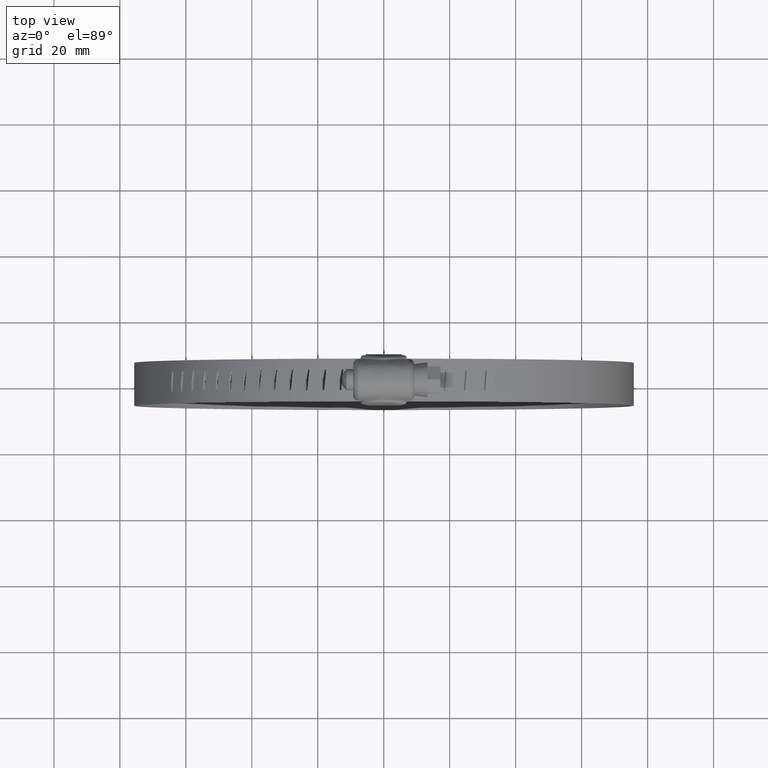
[diagram: clean part render]
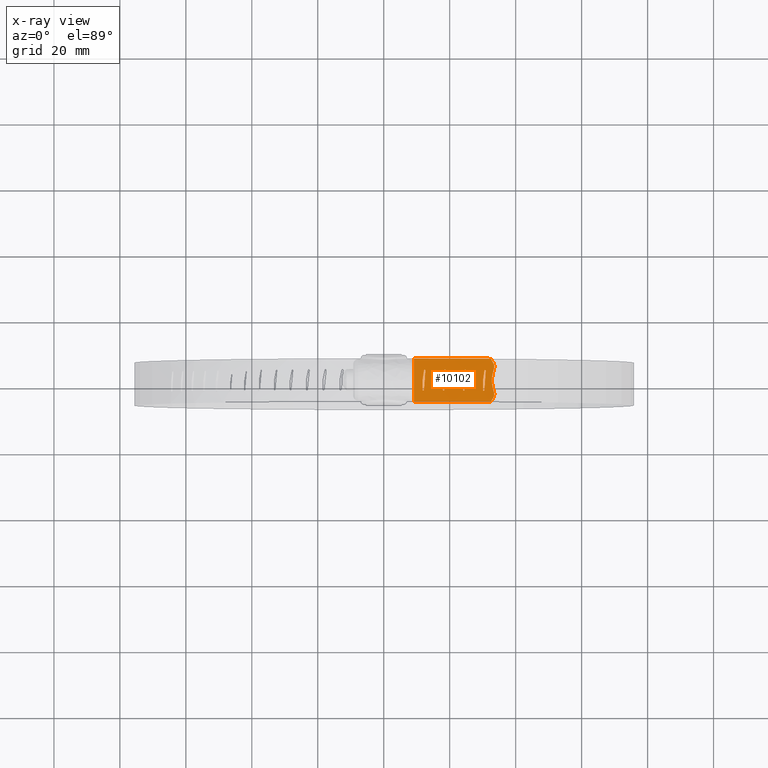
[diagram: x-ray — body ghosted, one internal face saturated and labeled with its STEP entity id]
A machine part, top view, then the same camera in x-ray: the body is ghosted and one INTERNAL B-rep face — a face not visible from any outside direction — is saturated and labeled: STEP entity #10102.
In plain terms, the highlighted face is a freeform B-spline surface patch.
Its self-contained STEP definition (entity closure, byte-faithful):
#8522=CARTESIAN_POINT('',(12.621050563106520,2.922974000000000,9.639978674388040));
#8523=VERTEX_POINT('',#8522);
#8553=CARTESIAN_POINT('',(12.197258352293501,2.922974000000000,9.715764423568471));
#8554=VERTEX_POINT('',#8553);
#8560=CARTESIAN_POINT('',(12.409141261787120,3.138223995001173,9.678004938314420));
#8561=VERTEX_POINT('',#8560);
#8562=CARTESIAN_POINT('',(12.409141261787120,3.138223995001173,9.678004938314420));
#8563=CARTESIAN_POINT('',(12.360539040545341,3.138493260547965,9.686696521324826));
#8564=CARTESIAN_POINT('',(12.277678379270631,3.107883992579400,9.701495662613029));
#8565=CARTESIAN_POINT('',(12.209647047831229,3.014547639316840,9.713604726398202));
#8566=CARTESIAN_POINT('',(12.197243026242370,2.951143868989650,9.715784312143546));
#8567=CARTESIAN_POINT('',(12.197258352293501,2.922974000000000,9.715764423568471));
#8568=B_SPLINE_CURVE_WITH_KNOTS('',3,(#8562,#8563,#8564,#8565,#8566,#8567),.UNSPECIFIED.,.F.,.U.,(4,1,1,4),(0.000001345725201,0.147992973240399,0.253677290558605,0.338236200371252),.UNSPECIFIED.);
#8569=EDGE_CURVE('',#8561,#8554,#8568,.T.);
#8571=CARTESIAN_POINT('',(12.621050563106520,2.922974000000000,9.639978674388040));
#8572=CARTESIAN_POINT('',(12.621321727612600,2.972379973455670,9.639960257601485));
#8573=CARTESIAN_POINT('',(12.593653056962941,3.049442554881268,9.644955090285704));
#8574=CARTESIAN_POINT('',(12.506172244041890,3.122316128271301,9.660643435679807));
#8575=CARTESIAN_POINT('',(12.443816358497291,3.138295098606456,9.671804116790016));
#8576=CARTESIAN_POINT('',(12.409141261787120,3.138223995001173,9.678004938314420));
#8577=B_SPLINE_CURVE_WITH_KNOTS('',3,(#8571,#8572,#8573,#8574,#8575,#8576),.UNSPECIFIED.,.F.,.U.,(4,1,1,4),(0.000000645072227,0.148010650070819,0.232556737187466,0.338277326846888),.UNSPECIFIED.);
#8578=EDGE_CURVE('',#8523,#8561,#8577,.T.);
#8588=CARTESIAN_POINT('',(12.197733933045599,-2.946526000000120,9.715679963979151));
#8589=VERTEX_POINT('',#8588);
#8603=CARTESIAN_POINT('',(12.197733933045599,-2.946526000000120,9.715679963979151));
#8604=CARTESIAN_POINT('',(12.621050563106520,2.922974000000000,9.639978674388040));
#8605=QUASI_UNIFORM_CURVE('',1,(#8603,#8604),.UNSPECIFIED.,.F.,.U.);
#8606=EDGE_CURVE('',#8589,#8523,#8605,.T.);
#8629=CARTESIAN_POINT('',(11.776015468093100,-2.915155000000085,9.790056147259360));
#8630=VERTEX_POINT('',#8629);
#8659=CARTESIAN_POINT('',(11.970270423373920,-3.161200159280604,9.755925241045254));
#8660=VERTEX_POINT('',#8659);
#8661=CARTESIAN_POINT('',(11.970270423373920,-3.161200159280604,9.755925241045254));
#8662=CARTESIAN_POINT('',(12.021047265318810,-3.165303050522245,9.746972208280443));
#8663=CARTESIAN_POINT('',(12.102405409654880,-3.140370726307386,9.732608301260834));
#8664=CARTESIAN_POINT('',(12.180526615000300,-3.049656764146616,9.718776157640372));
#8665=CARTESIAN_POINT('',(12.197827261485100,-2.983403777770540,9.715685442082318));
#8666=CARTESIAN_POINT('',(12.197733933045599,-2.946526000000120,9.715679963979151));
#8667=B_SPLINE_CURVE_WITH_KNOTS('',3,(#8661,#8662,#8663,#8664,#8665,#8666),.UNSPECIFIED.,.F.,.U.,(4,1,1,4),(0.000001156271713,0.154902252464168,0.243381106386276,0.354023892040114),.UNSPECIFIED.);
#8668=EDGE_CURVE('',#8660,#8589,#8667,.T.);
#8670=CARTESIAN_POINT('',(11.776015468093100,-2.915155000000085,9.790056147259360));
#8671=CARTESIAN_POINT('',(11.768293247647460,-2.966240788033765,9.791448817903566));
#8672=CARTESIAN_POINT('',(11.788501070781860,-3.058242182432255,9.787937399033986));
#8673=CARTESIAN_POINT('',(11.877128390070579,-3.140411750915053,9.772347709588651));
#8674=CARTESIAN_POINT('',(11.941319007800599,-3.159075034610215,9.761032405782125));
#8675=CARTESIAN_POINT('',(11.970270423373920,-3.161200159280604,9.755925241045254));
#8676=B_SPLINE_CURVE_WITH_KNOTS('',3,(#8670,#8671,#8672,#8673,#8674,#8675),.UNSPECIFIED.,.F.,.U.,(4,1,1,4),(0.000001168460284,0.154895498409542,0.265506636956977,0.354008461339972),.UNSPECIFIED.);
#8677=EDGE_CURVE('',#8630,#8660,#8676,.T.);
#8687=CARTESIAN_POINT('',(11.776015468093121,-0.011775999999998,9.790056147259470));
#8688=VERTEX_POINT('',#8687);
#8702=CARTESIAN_POINT('',(11.776015468093121,-0.011775999999998,9.790056147259470));
#8703=CARTESIAN_POINT('',(11.776015468093100,-2.915155000000085,9.790056147259360));
#8704=QUASI_UNIFORM_CURVE('',1,(#8702,#8703),.UNSPECIFIED.,.F.,.U.);
#8705=EDGE_CURVE('',#8688,#8630,#8704,.T.);
#8722=CARTESIAN_POINT('',(12.197258352293501,2.922974000000000,9.715764423568471));
#8723=CARTESIAN_POINT('',(11.776015468093121,-0.011775999999998,9.790056147259470));
#8724=QUASI_UNIFORM_CURVE('',1,(#8722,#8723),.UNSPECIFIED.,.F.,.U.);
#8725=EDGE_CURVE('',#8554,#8688,#8724,.T.);
#8748=CARTESIAN_POINT('',(18.771069719682750,2.922974000000000,8.421398834297820));
#8749=VERTEX_POINT('',#8748);
#8779=CARTESIAN_POINT('',(18.350180556137651,2.922974000000000,8.511928551711371));
#8780=VERTEX_POINT('',#8779);
#8786=CARTESIAN_POINT('',(18.560616605256289,3.138223995001173,8.466797461614279));
#8787=VERTEX_POINT('',#8786);
#8788=CARTESIAN_POINT('',(18.560616605256289,3.138223995001173,8.466797461614279));
#8789=CARTESIAN_POINT('',(18.512348999036199,3.138494714410219,8.477179583407080));
#8790=CARTESIAN_POINT('',(18.430048509154489,3.107878084570650,8.494862960290650));
#8791=CARTESIAN_POINT('',(18.362492850349700,3.014556553166598,8.509336414454214));
#8792=CARTESIAN_POINT('',(18.350159785994840,2.951132792276238,8.511950278534847));
#8793=CARTESIAN_POINT('',(18.350180556137651,2.922974000000000,8.511928551711371));
#8794=B_SPLINE_CURVE_WITH_KNOTS('',3,(#8788,#8789,#8790,#8791,#8792,#8793),.UNSPECIFIED.,.F.,.U.,(4,1,1,4),(0.000001345725174,0.147992973240308,0.253677290558458,0.338236200371078),.UNSPECIFIED.);
#8795=EDGE_CURVE('',#8787,#8780,#8794,.T.);
#8797=CARTESIAN_POINT('',(18.771069719682750,2.922974000000000,8.421398834297820));
#8798=CARTESIAN_POINT('',(18.771124869586082,2.958187236685915,8.421408555231759));
#8799=CARTESIAN_POINT('',(18.752113915345930,3.035712085874971,8.425545168776626));
#8800=CARTESIAN_POINT('',(18.670851267473260,3.118858174133634,8.443075043312792));
#8801=CARTESIAN_POINT('',(18.595038663515851,3.138278461204645,8.459393599862638));
#8802=CARTESIAN_POINT('',(18.560616605256289,3.138223995001173,8.466797461614279));
#8803=B_SPLINE_CURVE_WITH_KNOTS('',3,(#8797,#8798,#8799,#8800,#8801,#8802),.UNSPECIFIED.,.F.,.U.,(4,1,1,4),(0.000000645072310,0.105721354997011,0.232556737187596,0.338277326847056),.UNSPECIFIED.);
#8804=EDGE_CURVE('',#8749,#8787,#8803,.T.);
#8814=CARTESIAN_POINT('',(18.350652899581799,-2.946526000000120,8.511827546044069));
#8815=VERTEX_POINT('',#8814);
#8829=CARTESIAN_POINT('',(18.350652899581799,-2.946526000000120,8.511827546044069));
#8830=CARTESIAN_POINT('',(18.771069719682750,2.922974000000000,8.421398834297820));
#8831=QUASI_UNIFORM_CURVE('',1,(#8829,#8830),.UNSPECIFIED.,.F.,.U.);
#8832=EDGE_CURVE('',#8815,#8749,#8831,.T.);
#8855=CARTESIAN_POINT('',(17.931787025486699,-2.915155000000085,8.600876183539610));
#8856=VERTEX_POINT('',#8855);
#8885=CARTESIAN_POINT('',(18.124732494448331,-3.161200159280607,8.559986668780027));
#8886=VERTEX_POINT('',#8885);
#8887=CARTESIAN_POINT('',(18.124732494448331,-3.161200159280607,8.559986668780027));
#8888=CARTESIAN_POINT('',(18.175136728811790,-3.165300093761974,8.549273213981504));
#8889=CARTESIAN_POINT('',(18.263401513332600,-3.138123526509467,8.530491895674992));
#8890=CARTESIAN_POINT('',(18.337158377896131,-3.042373157827289,8.514753880605325));
#8891=CARTESIAN_POINT('',(18.350679572907431,-2.976005552294571,8.511839531956777));
#8892=CARTESIAN_POINT('',(18.350652899581799,-2.946526000000120,8.511827546044069));
#8893=B_SPLINE_CURVE_WITH_KNOTS('',3,(#8887,#8888,#8889,#8890,#8891,#8892),.UNSPECIFIED.,.F.,.U.,(4,1,1,4),(0.000001156271714,0.154902252464229,0.265518211435355,0.354023892040297),.UNSPECIFIED.);
#8894=EDGE_CURVE('',#8886,#8815,#8893,.T.);
#8896=CARTESIAN_POINT('',(17.931787025486699,-2.915155000000085,8.600876183539610));
#8897=CARTESIAN_POINT('',(17.926445147713100,-2.951622092567856,8.602033923224212));
#8898=CARTESIAN_POINT('',(17.934021206228699,-3.019731395043842,8.600463058576914));
#8899=CARTESIAN_POINT('',(17.997860643733500,-3.121029310247312,8.586945835123895));
#8900=CARTESIAN_POINT('',(18.074257933800830,-3.157744793972979,8.570719505521609));
#8901=CARTESIAN_POINT('',(18.124732494448331,-3.161200159280607,8.559986668780027));
#8902=B_SPLINE_CURVE_WITH_KNOTS('',3,(#8896,#8897,#8898,#8899,#8900,#8901),.UNSPECIFIED.,.F.,.U.,(4,1,1,4),(0.000001168460005,0.110639128882828,0.199114127584137,0.354008461339880),.UNSPECIFIED.);
#8903=EDGE_CURVE('',#8856,#8886,#8902,.T.);
#8913=CARTESIAN_POINT('',(17.931787025486649,-0.011775999999998,8.600876183539551));
#8914=VERTEX_POINT('',#8913);
#8928=CARTESIAN_POINT('',(17.931787025486649,-0.011775999999998,8.600876183539551));
#8929=CARTESIAN_POINT('',(17.931787025486699,-2.915155000000085,8.600876183539610));
#8930=QUASI_UNIFORM_CURVE('',1,(#8928,#8929),.UNSPECIFIED.,.F.,.U.);
#8931=EDGE_CURVE('',#8914,#8856,#8930,.T.);
#8948=CARTESIAN_POINT('',(18.350180556137651,2.922974000000000,8.511928551711371));
#8949=CARTESIAN_POINT('',(17.931787025486649,-0.011775999999998,8.600876183539551));
#8950=QUASI_UNIFORM_CURVE('',1,(#8948,#8949),.UNSPECIFIED.,.F.,.U.);
#8951=EDGE_CURVE('',#8780,#8914,#8950,.T.);
#8974=CARTESIAN_POINT('',(24.874814627645701,2.922974000000000,6.988928746845870));
#8975=VERTEX_POINT('',#8974);
#9005=CARTESIAN_POINT('',(24.457341299981401,2.922974000000000,7.094092135976839));
#9006=VERTEX_POINT('',#9005);
#9012=CARTESIAN_POINT('',(24.666074104814609,3.138223995001173,7.041644426318238));
#9013=VERTEX_POINT('',#9012);
#9014=CARTESIAN_POINT('',(24.666074104814609,3.138223995001173,7.041644426318238));
#9015=CARTESIAN_POINT('',(24.638760342801412,3.138245831608185,7.048524897973174));
#9016=CARTESIAN_POINT('',(24.577270392426200,3.125639330267080,7.064006699908362));
#9017=CARTESIAN_POINT('',(24.486768513444659,3.056523974837111,7.086761816411484));
#9018=CARTESIAN_POINT('',(24.457088100575810,2.972346743392946,7.094186427628648));
#9019=CARTESIAN_POINT('',(24.457341299981401,2.922974000000000,7.094092135976839));
#9020=B_SPLINE_CURVE_WITH_KNOTS('',3,(#9014,#9015,#9016,#9017,#9018,#9019),.UNSPECIFIED.,.F.,.U.,(4,1,1,4),(0.000001345725144,0.084560085239136,0.190244305550531,0.338236200371005),.UNSPECIFIED.);
#9021=EDGE_CURVE('',#9013,#9006,#9020,.T.);
#9023=CARTESIAN_POINT('',(24.874814627645701,2.922974000000000,6.988928746845870));
#9024=CARTESIAN_POINT('',(24.874833014384759,2.951145385740156,6.988941523485854));
#9025=CARTESIAN_POINT('',(24.862613992439570,3.014562230158369,6.992058737577098));
#9026=CARTESIAN_POINT('',(24.795554105325639,3.107853098002131,7.009009070230953));
#9027=CARTESIAN_POINT('',(24.713982247101789,3.138526327300617,7.029576338814580));
#9028=CARTESIAN_POINT('',(24.666074104814609,3.138223995001173,7.041644426318238));
#9029=B_SPLINE_CURVE_WITH_KNOTS('',3,(#9023,#9024,#9025,#9026,#9027,#9028),.UNSPECIFIED.,.F.,.U.,(4,1,1,4),(0.000000645072365,0.084569798400245,0.190267498508716,0.338277326847055),.UNSPECIFIED.);
#9030=EDGE_CURVE('',#8975,#9013,#9029,.T.);
#9040=CARTESIAN_POINT('',(24.457809830639651,-2.946526000000120,7.093974707290900));
#9041=VERTEX_POINT('',#9040);
#9055=CARTESIAN_POINT('',(24.457809830639651,-2.946526000000120,7.093974707290900));
#9056=CARTESIAN_POINT('',(24.874814627645701,2.922974000000000,6.988928746845870));
#9057=QUASI_UNIFORM_CURVE('',1,(#9055,#9056),.UNSPECIFIED.,.F.,.U.);
#9058=EDGE_CURVE('',#9041,#8975,#9057,.T.);
#9081=CARTESIAN_POINT('',(24.042306870948352,-2.915155000000085,7.197587306954190));
#9082=VERTEX_POINT('',#9081);
#9111=CARTESIAN_POINT('',(24.233707779257770,-3.161200159280608,7.149989001224705));
#9112=VERTEX_POINT('',#9111);
#9113=CARTESIAN_POINT('',(24.233707779257770,-3.161200159280608,7.149989001224705));
#9114=CARTESIAN_POINT('',(24.262221397465900,-3.163389511918628,7.142879838072451));
#9115=CARTESIAN_POINT('',(24.327441673824641,-3.154416371896264,7.126610338972950));
#9116=CARTESIAN_POINT('',(24.425436604130820,-3.086251915326308,7.102132034415258));
#9117=CARTESIAN_POINT('',(24.458126633327119,-2.998211253595978,7.093926912922213));
#9118=CARTESIAN_POINT('',(24.457809830639651,-2.946526000000120,7.093974707290900));
#9119=B_SPLINE_CURVE_WITH_KNOTS('',3,(#9113,#9114,#9115,#9116,#9117,#9118),.UNSPECIFIED.,.F.,.U.,(4,1,1,4),(0.000001156271799,0.088506843551154,0.199122806770314,0.354023892040531),.UNSPECIFIED.);
#9120=EDGE_CURVE('',#9112,#9041,#9119,.T.);
#9122=CARTESIAN_POINT('',(24.042306870948352,-2.915155000000085,7.197587306954190));
#9123=CARTESIAN_POINT('',(24.038120835447479,-2.944315513354746,7.198648963510533));
#9124=CARTESIAN_POINT('',(24.042021288234938,-3.011986044209094,7.197716455258458));
#9125=CARTESIAN_POINT('',(24.100887076864879,-3.117702655031009,7.183095455153842));
#9126=CARTESIAN_POINT('',(24.183665622042419,-3.157743422140402,7.162470079308171));
#9127=CARTESIAN_POINT('',(24.233707779257770,-3.161200159280608,7.149989001224705));
#9128=B_SPLINE_CURVE_WITH_KNOTS('',3,(#9122,#9123,#9124,#9125,#9126,#9127),.UNSPECIFIED.,.F.,.U.,(4,1,1,4),(0.000001168460267,0.088502990517027,0.199114127584070,0.354008461339688),.UNSPECIFIED.);
#9129=EDGE_CURVE('',#9082,#9112,#9128,.T.);
#9139=CARTESIAN_POINT('',(24.042306870948401,-0.011775999999998,7.197587306954410));
#9140=VERTEX_POINT('',#9139);
#9154=CARTESIAN_POINT('',(24.042306870948401,-0.011775999999998,7.197587306954410));
#9155=CARTESIAN_POINT('',(24.042306870948352,-2.915155000000085,7.197587306954190));
#9156=QUASI_UNIFORM_CURVE('',1,(#9154,#9155),.UNSPECIFIED.,.F.,.U.);
#9157=EDGE_CURVE('',#9140,#9082,#9156,.T.);
#9174=CARTESIAN_POINT('',(24.457341299981401,2.922974000000000,7.094092135976839));
#9175=CARTESIAN_POINT('',(24.042306870948401,-0.011775999999998,7.197587306954410));
#9176=QUASI_UNIFORM_CURVE('',1,(#9174,#9175),.UNSPECIFIED.,.F.,.U.);
#9177=EDGE_CURVE('',#9006,#9140,#9176,.T.);
#9208=CARTESIAN_POINT('',(33.444859360760702,3.681800700683225,4.591771502739620));
#9209=VERTEX_POINT('',#9208);
#9215=CARTESIAN_POINT('',(33.236891107048912,5.226117512658901,4.655400619356680));
#9216=VERTEX_POINT('',#9215);
#9217=CARTESIAN_POINT('',(33.236891107048912,5.226117512658901,4.655400619356680));
#9218=CARTESIAN_POINT('',(33.376816057057887,4.983017097622835,4.612553435106204));
#9219=CARTESIAN_POINT('',(33.544202799334407,4.465687030956193,4.561307361192305));
#9220=CARTESIAN_POINT('',(33.506726285105572,3.923649057816981,4.572810953511202));
#9221=CARTESIAN_POINT('',(33.444859360760702,3.681800700683225,4.591771502739620));
#9222=B_SPLINE_CURVE_WITH_KNOTS('',3,(#9217,#9218,#9219,#9220,#9221),.UNSPECIFIED.,.F.,.U.,(4,1,4),(0.000000096869533,0.851088487590407,1.602096485835686),.UNSPECIFIED.);
#9223=EDGE_CURVE('',#9216,#9209,#9222,.T.);
#9259=CARTESIAN_POINT('',(33.236891107049154,-5.226117512658950,4.655400619356630));
#9260=VERTEX_POINT('',#9259);
#9266=CARTESIAN_POINT('',(33.444859360760802,-3.681800700682530,4.591771502739620));
#9267=VERTEX_POINT('',#9266);
#9268=CARTESIAN_POINT('',(33.444859360760802,-3.681800700682530,4.591771502739620));
#9269=CARTESIAN_POINT('',(33.486010089358572,-3.843035977143960,4.579173764375308));
#9270=CARTESIAN_POINT('',(33.533797300948301,-4.209686380182802,4.564541501097377));
#9271=CARTESIAN_POINT('',(33.461804379335483,-4.744456174858482,4.586568158348844));
#9272=CARTESIAN_POINT('',(33.319016629508418,-5.083037564256418,4.630266401343206));
#9273=CARTESIAN_POINT('',(33.236891107049154,-5.226117512658950,4.655400619356630));
#9274=B_SPLINE_CURVE_WITH_KNOTS('',3,(#9268,#9269,#9270,#9271,#9272,#9273),.UNSPECIFIED.,.F.,.U.,(4,1,1,4),(0.000000096869835,0.500658340819480,1.101438264633571,1.602096508583192),.UNSPECIFIED.);
#9275=EDGE_CURVE('',#9267,#9260,#9274,.T.);
#9311=CARTESIAN_POINT('',(33.031557681417937,-2.061301204482635,4.717953573587089));
#9312=VERTEX_POINT('',#9311);
#9318=CARTESIAN_POINT('',(33.031557681417851,2.061301204482760,4.717953573587089));
#9319=VERTEX_POINT('',#9318);
#9320=CARTESIAN_POINT('',(33.031557681417851,2.061301204482760,4.717953573587089));
#9321=CARTESIAN_POINT('',(32.849240367121091,1.347903772316319,4.773235284209349));
#9322=CARTESIAN_POINT('',(32.686107822480160,-0.044910367014609,4.822699846369584));
#9323=CARTESIAN_POINT('',(32.870756822103942,-1.431818847490588,4.766711129097889));
#9324=CARTESIAN_POINT('',(33.031557681417937,-2.061301204482635,4.717953573587089));
#9325=B_SPLINE_CURVE_WITH_KNOTS('',3,(#9320,#9321,#9322,#9323,#9324),.UNSPECIFIED.,.F.,.U.,(4,1,4),(0.000000018257038,2.215136431625336,4.169685229366509),.UNSPECIFIED.);
#9326=EDGE_CURVE('',#9319,#9312,#9325,.T.);
#9341=CARTESIAN_POINT('',(32.505389203886637,-6.500000000000000,4.877023384676110));
#9342=VERTEX_POINT('',#9341);
#9343=CARTESIAN_POINT('',(32.505389203886637,-6.500000000000000,4.877023384676110));
#9344=CARTESIAN_POINT('',(33.236891107049154,-5.226117512658950,4.655400619356630));
#9345=QUASI_UNIFORM_CURVE('',1,(#9343,#9344),.UNSPECIFIED.,.F.,.U.);
#9346=EDGE_CURVE('',#9342,#9260,#9345,.T.);
#9377=CARTESIAN_POINT('',(32.505389203886700,6.500000000000000,4.877023384676220));
#9378=VERTEX_POINT('',#9377);
#9379=CARTESIAN_POINT('',(33.236891107048912,5.226117512658901,4.655400619356680));
#9380=CARTESIAN_POINT('',(32.505389203886700,6.500000000000000,4.877023384676220));
#9381=QUASI_UNIFORM_CURVE('',1,(#9379,#9380),.UNSPECIFIED.,.F.,.U.);
#9382=EDGE_CURVE('',#9216,#9378,#9381,.T.);
#9403=CARTESIAN_POINT('',(33.444859360760802,-3.681800700682530,4.591771502739620));
#9404=CARTESIAN_POINT('',(33.031557681417937,-2.061301204482635,4.717953573587089));
#9405=QUASI_UNIFORM_CURVE('',1,(#9403,#9404),.UNSPECIFIED.,.F.,.U.);
#9406=EDGE_CURVE('',#9267,#9312,#9405,.T.);
#9417=CARTESIAN_POINT('',(33.031557681417851,2.061301204482760,4.717953573587089));
#9418=CARTESIAN_POINT('',(33.444859360760702,3.681800700683225,4.591771502739620));
#9419=QUASI_UNIFORM_CURVE('',1,(#9417,#9418),.UNSPECIFIED.,.F.,.U.);
#9420=EDGE_CURVE('',#9319,#9209,#9419,.T.);
#9450=CARTESIAN_POINT('',(30.924848814034998,2.922974000000000,5.344313656178990));
#9451=VERTEX_POINT('',#9450);
#9481=CARTESIAN_POINT('',(30.511299949194299,2.922974000000000,5.463982591636831));
#9482=VERTEX_POINT('',#9481);
#9488=CARTESIAN_POINT('',(30.718075200972379,3.138223995001173,5.404282161871834));
#9489=VERTEX_POINT('',#9488);
#9490=CARTESIAN_POINT('',(30.718075200972379,3.138223995001173,5.404282161871834));
#9491=CARTESIAN_POINT('',(30.691020666607749,3.138247470511352,5.412110966734415));
#9492=CARTESIAN_POINT('',(30.630111630180629,3.125630400532328,5.429728388120734));
#9493=CARTESIAN_POINT('',(30.540444971531350,3.056534856377400,5.455632191757301));
#9494=CARTESIAN_POINT('',(30.511053713639321,2.972342500479364,5.464084641473721));
#9495=CARTESIAN_POINT('',(30.511299949194299,2.922974000000000,5.463982591636831));
#9496=B_SPLINE_CURVE_WITH_KNOTS('',3,(#9490,#9491,#9492,#9493,#9494,#9495),.UNSPECIFIED.,.F.,.U.,(4,1,1,4),(0.000001345725248,0.084560085239231,0.190244305550597,0.338236200371063),.UNSPECIFIED.);
#9497=EDGE_CURVE('',#9489,#9482,#9496,.T.);
#9499=CARTESIAN_POINT('',(30.924848814034998,2.922974000000000,5.344313656178990));
#9500=CARTESIAN_POINT('',(30.924867776155558,2.951143902634443,5.344325741712863));
#9501=CARTESIAN_POINT('',(30.912764121341901,3.014569191176662,5.347867750335518));
#9502=CARTESIAN_POINT('',(30.846339373718500,3.107836643665840,5.367147308926518));
#9503=CARTESIAN_POINT('',(30.765529734469119,3.138548839485489,5.390550411599419));
#9504=CARTESIAN_POINT('',(30.718075200972379,3.138223995001173,5.404282161871834));
#9505=B_SPLINE_CURVE_WITH_KNOTS('',3,(#9499,#9500,#9501,#9502,#9503,#9504),.UNSPECIFIED.,.F.,.U.,(4,1,1,4),(0.000000645072324,0.084569798400198,0.190267498508683,0.338277326847037),.UNSPECIFIED.);
#9506=EDGE_CURVE('',#9451,#9489,#9505,.T.);
#9516=CARTESIAN_POINT('',(30.511764096234302,-2.946526000000120,5.463848883001110));
#9517=VERTEX_POINT('',#9516);
#9531=CARTESIAN_POINT('',(30.511764096234302,-2.946526000000120,5.463848883001110));
#9532=CARTESIAN_POINT('',(30.924848814034998,2.922974000000000,5.344313656178990));
#9533=QUASI_UNIFORM_CURVE('',1,(#9531,#9532),.UNSPECIFIED.,.F.,.U.);
#9534=EDGE_CURVE('',#9517,#9451,#9533,.T.);
#9557=CARTESIAN_POINT('',(30.100130277299900,-2.915155000000085,5.581899208840000));
#9558=VERTEX_POINT('',#9557);
#9587=CARTESIAN_POINT('',(30.289753432433660,-3.161200159280604,5.527650103343690));
#9588=VERTEX_POINT('',#9587);
#9589=CARTESIAN_POINT('',(30.289753432433660,-3.161200159280604,5.527650103343690));
#9590=CARTESIAN_POINT('',(30.339287551787201,-3.165300093762007,5.513446724331603));
#9591=CARTESIAN_POINT('',(30.426027209191709,-3.138123526509520,5.488554116248492));
#9592=CARTESIAN_POINT('',(30.498506577305250,-3.042373157827322,5.467709419406137));
#9593=CARTESIAN_POINT('',(30.511791540680068,-2.976005552294577,5.463858979079588));
#9594=CARTESIAN_POINT('',(30.511764096234302,-2.946526000000120,5.463848883001110));
#9595=B_SPLINE_CURVE_WITH_KNOTS('',3,(#9589,#9590,#9591,#9592,#9593,#9594),.UNSPECIFIED.,.F.,.U.,(4,1,1,4),(0.000001156271589,0.154902252464218,0.265518211435406,0.354023892040398),.UNSPECIFIED.);
#9596=EDGE_CURVE('',#9588,#9517,#9595,.T.);
#9598=CARTESIAN_POINT('',(30.100130277299900,-2.915155000000085,5.581899208840000));
#9599=CARTESIAN_POINT('',(30.092595842299879,-2.966239817504120,5.584091467761491));
#9600=CARTESIAN_POINT('',(30.112326927126830,-3.058247955677721,5.578486707740213));
#9601=CARTESIAN_POINT('',(30.198837262719572,-3.140404598444000,5.553718882215750));
#9602=CARTESIAN_POINT('',(30.261502176798089,-3.159081448078640,5.535753327562913));
#9603=CARTESIAN_POINT('',(30.289753432433660,-3.161200159280604,5.527650103343690));
#9604=B_SPLINE_CURVE_WITH_KNOTS('',3,(#9598,#9599,#9600,#9601,#9602,#9603),.UNSPECIFIED.,.F.,.U.,(4,1,1,4),(0.000001168460242,0.154895498409414,0.265506636956810,0.354008461339764),.UNSPECIFIED.);
#9605=EDGE_CURVE('',#9558,#9588,#9604,.T.);
#9615=CARTESIAN_POINT('',(30.100130277299950,-0.011775999999998,5.581899208840220));
#9616=VERTEX_POINT('',#9615);
#9630=CARTESIAN_POINT('',(30.100130277299950,-0.011775999999998,5.581899208840220));
#9631=CARTESIAN_POINT('',(30.100130277299900,-2.915155000000085,5.581899208840000));
#9632=QUASI_UNIFORM_CURVE('',1,(#9630,#9631),.UNSPECIFIED.,.F.,.U.);
#9633=EDGE_CURVE('',#9616,#9558,#9632,.T.);
#9650=CARTESIAN_POINT('',(30.511299949194299,2.922974000000000,5.463982591636831));
#9651=CARTESIAN_POINT('',(30.100130277299950,-0.011775999999998,5.581899208840220));
#9652=QUASI_UNIFORM_CURVE('',1,(#9650,#9651),.UNSPECIFIED.,.F.,.U.);
#9653=EDGE_CURVE('',#9482,#9616,#9652,.T.);
#9723=CARTESIAN_POINT('',(9.127223045796569,-6.500000000000000,10.233570593487499));
#9724=VERTEX_POINT('',#9723);
#9739=CARTESIAN_POINT('',(9.127223045796569,6.500000000000000,10.233570593487499));
#9740=VERTEX_POINT('',#9739);
#9748=CARTESIAN_POINT('',(9.127223045796569,6.500000000000000,10.233570593487499));
#9749=CARTESIAN_POINT('',(9.127223045796569,-6.500000000000000,10.233570593487499));
#9750=QUASI_UNIFORM_CURVE('',1,(#9748,#9749),.UNSPECIFIED.,.F.,.U.);
#9751=EDGE_CURVE('',#9740,#9724,#9750,.T.);
#9881=CARTESIAN_POINT('',(32.505389203886637,-6.500000000000000,4.877023384676110));
#9882=CARTESIAN_POINT('',(20.995516394834532,-6.500000000000000,8.337444015106888));
#9883=CARTESIAN_POINT('',(9.127223045796569,-6.500000000000000,10.233570593487499));
#9891=(BOUNDED_CURVE()B_SPLINE_CURVE(2,(#9881,#9882,#9883),.UNSPECIFIED.,.F.,.U.)CURVE()GEOMETRIC_REPRESENTATION_ITEM()QUASI_UNIFORM_CURVE()RATIONAL_B_SPLINE_CURVE((1.0,0.997768840873101,1.0))REPRESENTATION_ITEM(''));
#9892=EDGE_CURVE('',#9342,#9724,#9891,.T.);
#9951=CARTESIAN_POINT('',(32.505389203886700,6.500000000000000,4.877023384676220));
#9952=CARTESIAN_POINT('',(20.995516394834532,6.500000000000000,8.337444015106888));
#9953=CARTESIAN_POINT('',(9.127223045796569,6.500000000000000,10.233570593487499));
#9961=(BOUNDED_CURVE()B_SPLINE_CURVE(2,(#9951,#9952,#9953),.UNSPECIFIED.,.F.,.U.)CURVE()GEOMETRIC_REPRESENTATION_ITEM()QUASI_UNIFORM_CURVE()RATIONAL_B_SPLINE_CURVE((1.0,0.997768840873101,1.0))REPRESENTATION_ITEM(''));
#9962=EDGE_CURVE('',#9378,#9740,#9961,.T.);
#10040=CARTESIAN_POINT('',(7.893230899640913,6.825000000000001,10.426320899580571));
#10041=CARTESIAN_POINT('',(7.893230899640913,-6.833124923706054,10.426320899580571));
#10042=CARTESIAN_POINT('',(21.537980783451410,6.825000000000000,8.343572511471304));
#10043=CARTESIAN_POINT('',(21.537980783451410,-6.833124923706052,8.343572511471304));
#10044=CARTESIAN_POINT('',(34.704312509704238,6.825000000000001,4.200536292200910));
#10045=CARTESIAN_POINT('',(34.704312509704238,-6.833124923706053,4.200536292200910));
#10053=(BOUNDED_SURFACE()B_SPLINE_SURFACE(1,2,((#10040,#10042,#10044),(#10041,#10043,#10045)),.UNSPECIFIED.,.F.,.F.,.U.)B_SPLINE_SURFACE_WITH_KNOTS((2,2),(3,3),(0.0,13.658124923706060),(3.560661294627190,31.130175134968759),.UNSPECIFIED.)GEOMETRIC_REPRESENTATION_ITEM()RATIONAL_B_SPLINE_SURFACE(((0.998889945222387,0.994971389891661,0.996920561803966),(0.998889945222387,0.994971389891661,0.996920561803966)))REPRESENTATION_ITEM('')SURFACE());
#10054=ORIENTED_EDGE('',*,*,#9406,.F.);
#10055=ORIENTED_EDGE('',*,*,#9275,.T.);
#10056=ORIENTED_EDGE('',*,*,#9346,.F.);
#10057=ORIENTED_EDGE('',*,*,#9892,.T.);
#10058=ORIENTED_EDGE('',*,*,#9751,.F.);
#10059=ORIENTED_EDGE('',*,*,#9962,.F.);
#10060=ORIENTED_EDGE('',*,*,#9382,.F.);
#10061=ORIENTED_EDGE('',*,*,#9223,.T.);
#10062=ORIENTED_EDGE('',*,*,#9420,.F.);
#10063=ORIENTED_EDGE('',*,*,#9326,.T.);
#10064=EDGE_LOOP('',(#10054,#10055,#10056,#10057,#10058,#10059,#10060,#10061,#10062,#10063));
#10065=FACE_OUTER_BOUND('',#10064,.T.);
#10066=ORIENTED_EDGE('',*,*,#8951,.T.);
#10067=ORIENTED_EDGE('',*,*,#8931,.T.);
#10068=ORIENTED_EDGE('',*,*,#8903,.T.);
#10069=ORIENTED_EDGE('',*,*,#8894,.T.);
#10070=ORIENTED_EDGE('',*,*,#8832,.T.);
#10071=ORIENTED_EDGE('',*,*,#8804,.T.);
#10072=ORIENTED_EDGE('',*,*,#8795,.T.);
#10073=EDGE_LOOP('',(#10066,#10067,#10068,#10069,#10070,#10071,#10072));
#10074=FACE_BOUND('',#10073,.T.);
#10075=ORIENTED_EDGE('',*,*,#9177,.T.);
#10076=ORIENTED_EDGE('',*,*,#9157,.T.);
#10077=ORIENTED_EDGE('',*,*,#9129,.T.);
#10078=ORIENTED_EDGE('',*,*,#9120,.T.);
#10079=ORIENTED_EDGE('',*,*,#9058,.T.);
#10080=ORIENTED_EDGE('',*,*,#9030,.T.);
#10081=ORIENTED_EDGE('',*,*,#9021,.T.);
#10082=EDGE_LOOP('',(#10075,#10076,#10077,#10078,#10079,#10080,#10081));
#10083=FACE_BOUND('',#10082,.T.);
#10084=ORIENTED_EDGE('',*,*,#9653,.T.);
#10085=ORIENTED_EDGE('',*,*,#9633,.T.);
#10086=ORIENTED_EDGE('',*,*,#9605,.T.);
#10087=ORIENTED_EDGE('',*,*,#9596,.T.);
#10088=ORIENTED_EDGE('',*,*,#9534,.T.);
#10089=ORIENTED_EDGE('',*,*,#9506,.T.);
#10090=ORIENTED_EDGE('',*,*,#9497,.T.);
#10091=EDGE_LOOP('',(#10084,#10085,#10086,#10087,#10088,#10089,#10090));
#10092=FACE_BOUND('',#10091,.T.);
#10093=ORIENTED_EDGE('',*,*,#8725,.T.);
#10094=ORIENTED_EDGE('',*,*,#8705,.T.);
#10095=ORIENTED_EDGE('',*,*,#8677,.T.);
#10096=ORIENTED_EDGE('',*,*,#8668,.T.);
#10097=ORIENTED_EDGE('',*,*,#8606,.T.);
#10098=ORIENTED_EDGE('',*,*,#8578,.T.);
#10099=ORIENTED_EDGE('',*,*,#8569,.T.);
#10100=EDGE_LOOP('',(#10093,#10094,#10095,#10096,#10097,#10098,#10099));
#10101=FACE_BOUND('',#10100,.T.);
#10102=ADVANCED_FACE('',(#10065,#10074,#10083,#10092,#10101),#10053,.F.);